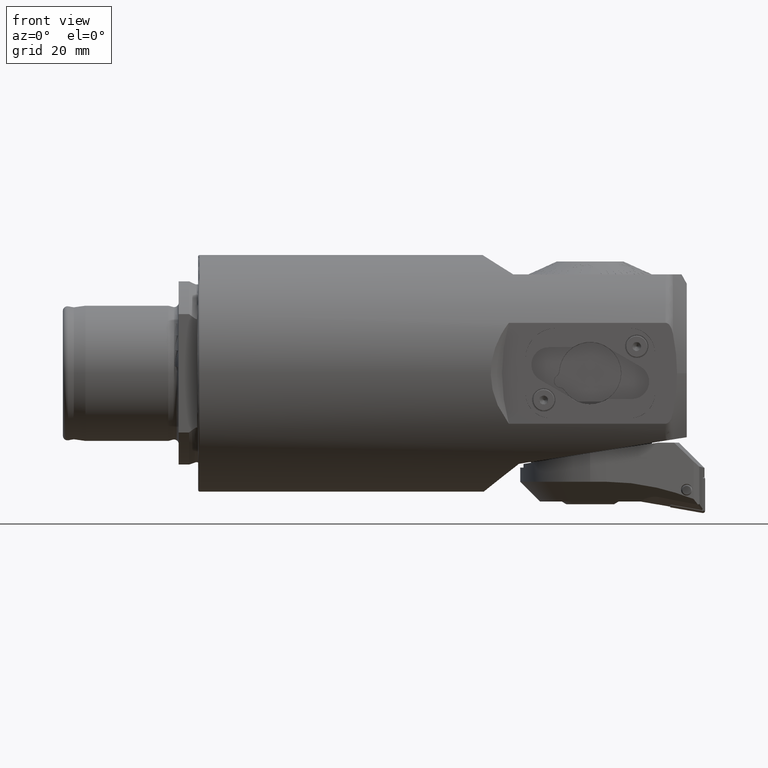
[diagram: clean part render]
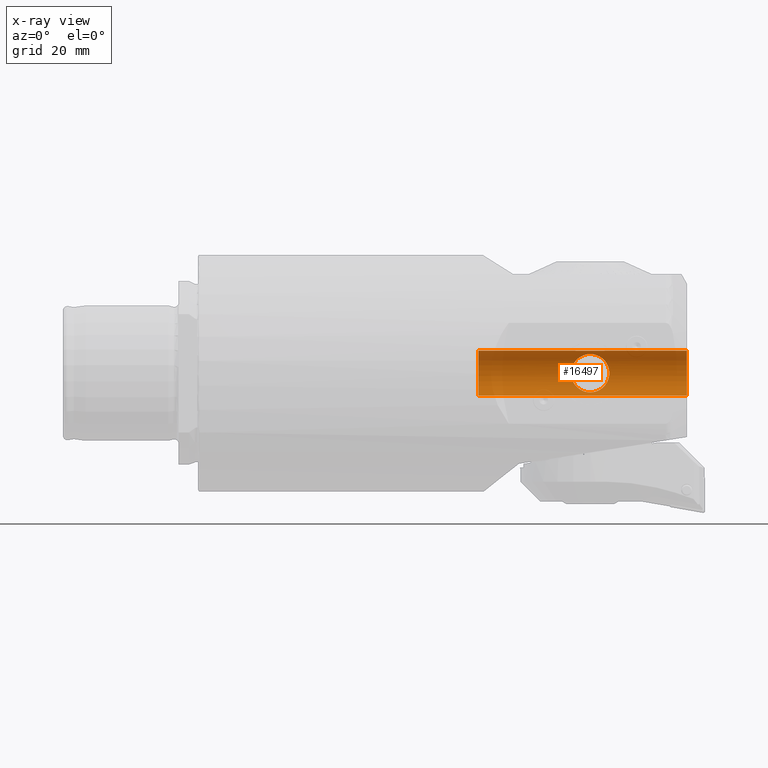
[diagram: x-ray — body ghosted, one internal face saturated and labeled with its STEP entity id]
A machine part, front view, then the same camera in x-ray: the body is ghosted and one INTERNAL B-rep face — a face not visible from any outside direction — is saturated and labeled: STEP entity #16497.
In plain terms, the highlighted cylindrical surface (edge-blend (fillet) strip) has radius 4 mm, axis along (1, 0, 0).
Its self-contained STEP definition (entity closure, byte-faithful):
#59 = CARTESIAN_POINT ( 'NONE',  ( 66.20029320698316200, 14.49975077411593800, 0.2415917161080868800 ) ) ;
#238 = DIRECTION ( 'NONE',  ( 0.0000000000000000000, 0.0000000000000000000, -1.000000000000000000 ) ) ;
#930 = CARTESIAN_POINT ( 'NONE',  ( 49.74999999999999300, 10.50000000000000900, 3.999999999999991600 ) ) ;
#1514 = CARTESIAN_POINT ( 'NONE',  ( 66.22624692366817100, 14.47762679373887300, 0.4827091111220064300 ) ) ;
#1586 = CARTESIAN_POINT ( 'NONE',  ( 86.75000000000000000, 10.50000000000000900, 3.999999999999993300 ) ) ;
#2024 = CARTESIAN_POINT ( 'NONE',  ( 72.87871926215100900, 10.50000000000000700, -3.999999999999993300 ) ) ;
#2058 = B_SPLINE_CURVE_WITH_KNOTS ( 'NONE', 3,
 ( #4241, #23598, #7076, #26384, #9847, #29150, #13129, #32398, #15927, #35176, #18661, #2024 ),
 .UNSPECIFIED., .F., .F.,
 ( 4, 2, 2, 2, 2, 4 ),
 ( 0.0000000000000000000, 0.001657707222702351400, 0.003315414445404702700, 0.004144268056755899000, 0.004973121668107095300, 0.006630828890809487900 ),
 .UNSPECIFIED. ) ;
#2365 = CARTESIAN_POINT ( 'NONE',  ( 66.32473003301213100, 14.39444456204779700, 0.9422444212442422400 ) ) ;
#2575 = CARTESIAN_POINT ( 'NONE',  ( 71.12984336122038100, 13.09856422677248300, -3.043959851297211500 ) ) ;
#2654 = CARTESIAN_POINT ( 'NONE',  ( 72.35113933623448200, 10.66474156813589100, 3.999999999999993300 ) ) ;
#2697 = CARTESIAN_POINT ( 'NONE',  ( 72.97523637235555300, 14.47888773231495600, 0.4721518094093917200 ) ) ;
#2826 = CARTESIAN_POINT ( 'NONE',  ( 70.52755143176034400, 12.80031713631205100, 3.272888174631786800 ) ) ;
#3082 = CARTESIAN_POINT ( 'NONE',  ( 86.75000000000000000, 10.50000000000000900, 0.0000000000000000000 ) ) ;
#3103 = CYLINDRICAL_SURFACE ( 'NONE', #28645, 3.999999999999993300 ) ;
#3541 = EDGE_CURVE ( 'NONE', #34773, #25202, #5668, .T. ) ;
#3993 = FACE_BOUND ( 'NONE', #21827, .T. ) ;
#4241 = CARTESIAN_POINT ( 'NONE',  ( 66.32128073784899400, 10.50000000000000900, -3.999999999999993300 ) ) ;
#4433 = EDGE_CURVE ( 'NONE', #34541, #33402, #16050, .T. ) ;
#4540 = CARTESIAN_POINT ( 'NONE',  ( 69.59999999999999400, 12.60713075057061300, 3.399999999999958600 ) ) ;
#4752 = CARTESIAN_POINT ( 'NONE',  ( 66.39647878788594000, 14.33404250513923600, 1.161732173937885200 ) ) ;
#4952 = LINE ( 'NONE', #8764, #12366 ) ;
#5070 = ORIENTED_EDGE ( 'NONE', *, *, #4433, .T. ) ;
#5118 = CARTESIAN_POINT ( 'NONE',  ( 66.58064933254461000, 14.18155024790009300, 1.579775726919371100 ) ) ;
#5404 = CARTESIAN_POINT ( 'NONE',  ( 71.65862260671437400, 13.44301479209332200, -2.713895236536594300 ) ) ;
#5487 = CARTESIAN_POINT ( 'NONE',  ( 70.15168814137926700, 11.00003609520684300, 3.968622419028486900 ) ) ;
#5534 = CARTESIAN_POINT ( 'NONE',  ( 72.80568821200788000, 14.33586151943765500, 1.155473790320346000 ) ) ;
#5663 = CARTESIAN_POINT ( 'NONE',  ( 70.19285967703410700, 12.68635278496534000, 3.349880452182826000 ) ) ;
#5668 = CIRCLE ( 'NONE', #21228, 3.999999999999991600 ) ;
#5963 = DIRECTION ( 'NONE',  ( 1.000000000000000000, -0.0000000000000000000, -0.0000000000000000000 ) ) ;
#6227 = CARTESIAN_POINT ( 'NONE',  ( 66.68979337396956500, 14.09217344605888700, 1.771297428691596300 ) ) ;
#6242 = EDGE_CURVE ( 'NONE', #19397, #31497, #16536, .T. ) ;
#6339 = B_SPLINE_CURVE_WITH_KNOTS ( 'NONE', 3,
 ( #10955, #2654, #19283, #22075, #5487, #24836, #8308, #27597, #11078, #30379, #13880, #33138 ),
 .UNSPECIFIED., .F., .F.,
 ( 4, 2, 2, 2, 2, 4 ),
 ( 0.02447144514583597000, 0.02612663286828468400, 0.02778182059073339800, 0.02943700831318210900, 0.03026460217440646700, 0.03109219603563082400 ),
 .UNSPECIFIED. ) ;
#6746 = DIRECTION ( 'NONE',  ( 1.000000000000000000, -0.0000000000000000000, -0.0000000000000000000 ) ) ;
#6780 = CARTESIAN_POINT ( 'NONE',  ( 66.93775102528978500, 13.89440378619346800, 2.125847497760713400 ) ) ;
#7076 = CARTESIAN_POINT ( 'NONE',  ( 67.39701250567496500, 10.79130259362015700, -3.990254456750717400 ) ) ;
#8228 = CARTESIAN_POINT ( 'NONE',  ( 72.12354290629978900, 13.78607313972996300, -2.288213798960637000 ) ) ;
#8262 = EDGE_CURVE ( 'NONE', #21472, #8650, #6339, .T. ) ;
#8308 = CARTESIAN_POINT ( 'NONE',  ( 68.49478087657863100, 10.95855876032172900, 3.974525765906333800 ) ) ;
#8356 = CARTESIAN_POINT ( 'NONE',  ( 72.51406656894499700, 14.09528765997715800, 1.765242873718624800 ) ) ;
#8377 = ORIENTED_EDGE ( 'NONE', *, *, #22329, .T. ) ;
#8469 = CARTESIAN_POINT ( 'NONE',  ( 69.84286495112384300, 12.61790866776065700, 3.393377938794344600 ) ) ;
#8546 = CARTESIAN_POINT ( 'NONE',  ( 66.68657396856205800, 14.09477374599102900, -1.766204473687402100 ) ) ;
#8548 = CARTESIAN_POINT ( 'NONE',  ( 67.07806350609612900, 13.78484104320134100, 2.289957187037936500 ) ) ;
#8579 = CARTESIAN_POINT ( 'NONE',  ( 66.32128073784899400, 10.50000000000000900, -3.999999999999993300 ) ) ;
#8650 = VERTEX_POINT ( 'NONE', #13235 ) ;
#8764 = CARTESIAN_POINT ( 'NONE',  ( 86.75000000000000000, 10.50000000000000900, 3.999999999999993300 ) ) ;
#9607 = CARTESIAN_POINT ( 'NONE',  ( 67.37891737904847400, 13.55993872633240800, 2.582800725696426700 ) ) ;
#9766 = CARTESIAN_POINT ( 'NONE',  ( 67.53981241314910700, 13.44411830611975500, 2.712696273565397200 ) ) ;
#9847 = CARTESIAN_POINT ( 'NONE',  ( 69.04147166469694200, 10.99995426820468900, -3.968632728261085600 ) ) ;
#9943 = VECTOR ( 'NONE', #23790, 1000.000000000000000 ) ;
#10231 = CARTESIAN_POINT ( 'NONE',  ( 67.88513873861431600, 13.21370758432377100, 2.943186168054731800 ) ) ;
#10345 = CARTESIAN_POINT ( 'NONE',  ( 68.07135417352951400, 13.09788121237022600, 3.044526586927038800 ) ) ;
#10469 = CARTESIAN_POINT ( 'NONE',  ( 68.46561595135646900, 12.88726954921672200, 3.212331401252737500 ) ) ;
#10955 = CARTESIAN_POINT ( 'NONE',  ( 72.87871926215100900, 10.50000000000000700, 3.999999999999993300 ) ) ;
#10991 = CARTESIAN_POINT ( 'NONE',  ( 72.50791884919797800, 14.09032423891298300, -1.774935028109661600 ) ) ;
#11078 = CARTESIAN_POINT ( 'NONE',  ( 67.39222883505843200, 10.77973778877368900, 3.990697473642072200 ) ) ;
#11117 = CARTESIAN_POINT ( 'NONE',  ( 72.12595358946127500, 13.78794216507006000, 2.285480378414796600 ) ) ;
#11235 = CARTESIAN_POINT ( 'NONE',  ( 69.59999999999999400, 12.60713075057061300, 3.399999999999958600 ) ) ;
#11509 = CARTESIAN_POINT ( 'NONE',  ( 68.67322158733486500, 12.79197613451799700, 3.279355701261409600 ) ) ;
#11999 = ORIENTED_EDGE ( 'NONE', *, *, #30048, .F. ) ;
#12366 = VECTOR ( 'NONE', #5963, 1000.000000000000000 ) ;
#12371 = VERTEX_POINT ( 'NONE', #8579 ) ;
#12516 = CARTESIAN_POINT ( 'NONE',  ( 69.59999999999999400, 12.60713075057061300, 3.399999999999958600 ) ) ;
#12960 = CARTESIAN_POINT ( 'NONE',  ( 72.87871926215100900, 10.50000000000000700, 3.999999999999993300 ) ) ;
#13129 = CARTESIAN_POINT ( 'NONE',  ( 70.15882136216619400, 10.98932519488530000, -3.970014551052450300 ) ) ;
#13235 = CARTESIAN_POINT ( 'NONE',  ( 66.32128073784898000, 10.50000000000000900, 3.999999999999993300 ) ) ;
#13483 = EDGE_CURVE ( 'NONE', #25202, #8650, #4952, .T. ) ;
#13684 = CARTESIAN_POINT ( 'NONE',  ( 69.83753203055830700, 12.61729810752954400, -3.393756686616953700 ) ) ;
#13804 = CARTESIAN_POINT ( 'NONE',  ( 72.80218408636287100, 14.33292950760090900, -1.165081166524288400 ) ) ;
#13875 = CARTESIAN_POINT ( 'NONE',  ( 69.35776920957215500, 12.60713075057061200, 3.399999999999958600 ) ) ;
#13880 = CARTESIAN_POINT ( 'NONE',  ( 66.58466114248869900, 10.58224289580623000, 3.999999999999994200 ) ) ;
#13927 = CARTESIAN_POINT ( 'NONE',  ( 71.66355730805929600, 13.44643000430937700, 2.710281857267437600 ) ) ;
#14716 = CARTESIAN_POINT ( 'NONE',  ( 69.12414565327114200, 12.64957524509348700, 3.374411753517502000 ) ) ;
#15902 = ORIENTED_EDGE ( 'NONE', *, *, #13483, .F. ) ;
#15927 = CARTESIAN_POINT ( 'NONE',  ( 70.98969399700710900, 10.91536844203161200, -3.978596939462574400 ) ) ;
#16050 = LINE ( 'NONE', #17819, #29825 ) ;
#16100 = ORIENTED_EDGE ( 'NONE', *, *, #8262, .T. ) ;
#16464 = CARTESIAN_POINT ( 'NONE',  ( 70.18934418016489500, 12.68543443096321400, -3.350472811635128300 ) ) ;
#16497 = ADVANCED_FACE ( 'NONE', ( #32531, #3993 ), #3103, .F. ) ;
#16536 = B_SPLINE_CURVE_WITH_KNOTS ( 'NONE', 3,
 ( #12516, #13875, #14716, #11509, #10469, #10345, #10231, #9766, #9607, #8548, #6780, #6227, #5118, #4752, #2365, #1514, #59, #35911, #33615, #25434, #33493, #33131, #8546, #30008, #27002, #27369, #26882, #30253, #24245, #22417, #16773, #22292, #21583, #19515, #18679, #18548 ),
 .UNSPECIFIED., .F., .F.,
 ( 4, 2, 2, 2, 2, 2, 2, 2, 2, 2, 2, 2, 2, 2, 2, 2, 2, 4 ),
 ( 0.0000000000000000000, 0.0007142381427011211700, 0.001428476285402242300, 0.002142714428103363500, 0.002856952570804484700, 0.003571190713505605900, 0.004285428856206727000, 0.004999666998907847800, 0.005713905141608969400, 0.006428143284310091000, 0.007142381427011211700, 0.007856619569712333300, 0.008570857712413454100, 0.009285095855114574800, 0.009999333997815695500, 0.01071357214051681800, 0.01107069121186735900, 0.01142781028321790100 ),
 .UNSPECIFIED. ) ;
#16583 = CARTESIAN_POINT ( 'NONE',  ( 72.97394441537836900, 14.47778688992436000, -0.4824786890230738900 ) ) ;
#16707 = CARTESIAN_POINT ( 'NONE',  ( 71.13195442266162200, 13.09992220490596700, 3.042757229320772100 ) ) ;
#16773 = CARTESIAN_POINT ( 'NONE',  ( 68.67422891085433900, 12.79172165699870700, -3.279518758484388100 ) ) ;
#16778 = EDGE_LOOP ( 'NONE', ( #15902, #23710, #17293, #8377, #5070, #31330, #34809, #16100 ) ) ;
#17265 = DIRECTION ( 'NONE',  ( 1.000000000000000000, -0.0000000000000000000, -0.0000000000000000000 ) ) ;
#17293 = ORIENTED_EDGE ( 'NONE', *, *, #28429, .T. ) ;
#17819 = CARTESIAN_POINT ( 'NONE',  ( 86.75000000000000000, 10.50000000000000900, -3.999999999999993300 ) ) ;
#18548 = CARTESIAN_POINT ( 'NONE',  ( 69.59999999999999400, 12.60713075057061000, -3.399999999999958600 ) ) ;
#18661 = CARTESIAN_POINT ( 'NONE',  ( 72.34854743184276100, 10.66555091355063600, -3.999999999999994700 ) ) ;
#18679 = CARTESIAN_POINT ( 'NONE',  ( 69.48086659089173600, 12.60713075057061200, -3.399999999999959100 ) ) ;
#19212 = CARTESIAN_POINT ( 'NONE',  ( 70.73471281981699100, 12.88740204285927300, -3.212248294064826000 ) ) ;
#19283 = CARTESIAN_POINT ( 'NONE',  ( 71.81050315009585500, 10.79011777869232300, 3.990363392223191600 ) ) ;
#19328 = CARTESIAN_POINT ( 'NONE',  ( 73.00054267314429500, 14.50046127182572400, 0.2301070915000027500 ) ) ;
#19352 = LINE ( 'NONE', #33189, #32274 ) ;
#19364 = EDGE_CURVE ( 'NONE', #21472, #23434, #24629, .T. ) ;
#19397 = VERTEX_POINT ( 'NONE', #4540 ) ;
#19448 = CARTESIAN_POINT ( 'NONE',  ( 70.73758167194849000, 12.89273887614243100, 3.205940829437144800 ) ) ;
#19515 = CARTESIAN_POINT ( 'NONE',  ( 69.35965533604260700, 12.61761860720937300, -3.393557887979912200 ) ) ;
#19776 = ORIENTED_EDGE ( 'NONE', *, *, #6242, .F. ) ;
#21228 = AXIS2_PLACEMENT_3D ( 'NONE', #34251, #34240, #34223 ) ;
#21472 = VERTEX_POINT ( 'NONE', #12960 ) ;
#21583 = CARTESIAN_POINT ( 'NONE',  ( 69.12432184475959200, 12.65703794947596900, -3.368639337950941400 ) ) ;
#21827 = EDGE_LOOP ( 'NONE', ( #19776, #11999 ) ) ;
#21994 = CARTESIAN_POINT ( 'NONE',  ( 71.31291100073518400, 13.21246624422207100, -2.944331892863293100 ) ) ;
#22075 = CARTESIAN_POINT ( 'NONE',  ( 70.70441032831985200, 10.95870629597016500, 3.974513411921723800 ) ) ;
#22115 = CARTESIAN_POINT ( 'NONE',  ( 72.87827280907288200, 14.39697313665376500, 0.9317055810147082400 ) ) ;
#22232 = CARTESIAN_POINT ( 'NONE',  ( 70.41748925832517600, 12.75764137788750200, 3.302255737082227900 ) ) ;
#22292 = CARTESIAN_POINT ( 'NONE',  ( 69.00986017436292700, 12.68563469608209400, -3.350344584573962800 ) ) ;
#22329 = EDGE_CURVE ( 'NONE', #12371, #34541, #2058, .T. ) ;
#22417 = CARTESIAN_POINT ( 'NONE',  ( 68.46266882646649800, 12.88871263479431100, -3.211250099679539900 ) ) ;
#22425 = CARTESIAN_POINT ( 'NONE',  ( 70.83853392095971900, 12.94277384401027200, 3.168177347317535200 ) ) ;
#23278 = CARTESIAN_POINT ( 'NONE',  ( 86.75000000000000000, 10.50000000000000900, 0.0000000000000000000 ) ) ;
#23434 = VERTEX_POINT ( 'NONE', #28005 ) ;
#23598 = CARTESIAN_POINT ( 'NONE',  ( 66.85628790657472100, 10.66706079137999900, -3.999999999999992500 ) ) ;
#23710 = ORIENTED_EDGE ( 'NONE', *, *, #3541, .F. ) ;
#23790 = DIRECTION ( 'NONE',  ( 1.000000000000000000, -0.0000000000000000000, -0.0000000000000000000 ) ) ;
#24245 = CARTESIAN_POINT ( 'NONE',  ( 68.06961122520203800, 13.09894510433800400, -3.043609633142092100 ) ) ;
#24629 = LINE ( 'NONE', #1586, #9943 ) ;
#24771 = CARTESIAN_POINT ( 'NONE',  ( 71.82244629742203300, 13.56092721648912100, -2.581651340666422500 ) ) ;
#24836 = CARTESIAN_POINT ( 'NONE',  ( 69.04687340598313500, 10.99996385776713500, 3.968631520089996600 ) ) ;
#24880 = CARTESIAN_POINT ( 'NONE',  ( 72.62357520047397900, 14.18502424369466300, 1.571480066625851900 ) ) ;
#25001 = CARTESIAN_POINT ( 'NONE',  ( 70.07815076089403300, 12.65758705285206400, 3.368288745021283900 ) ) ;
#25202 = VERTEX_POINT ( 'NONE', #930 ) ;
#25260 = DIRECTION ( 'NONE',  ( 1.000000000000000000, -0.0000000000000000000, -0.0000000000000000000 ) ) ;
#25434 = CARTESIAN_POINT ( 'NONE',  ( 66.32256673655108200, 14.39626584507695000, -0.9347910684628936200 ) ) ;
#26054 = CARTESIAN_POINT ( 'NONE',  ( 72.87871926215100900, 10.50000000000000700, -3.999999999999993300 ) ) ;
#26070 = DIRECTION ( 'NONE',  ( 0.0000000000000000000, 0.0000000000000000000, -1.000000000000000000 ) ) ;
#26199 = EDGE_CURVE ( 'NONE', #33402, #23434, #34640, .T. ) ;
#26384 = CARTESIAN_POINT ( 'NONE',  ( 68.48960391828185800, 10.95775461072799400, -3.974600426083867000 ) ) ;
#26711 = CARTESIAN_POINT ( 'NONE',  ( 69.59999999999999400, 12.60713075057061000, -3.399999999999958600 ) ) ;
#26882 = CARTESIAN_POINT ( 'NONE',  ( 67.53616643983920700, 13.44663371849753700, -2.710046779139327500 ) ) ;
#27002 = CARTESIAN_POINT ( 'NONE',  ( 67.07557616472973900, 13.78676623763686500, -2.287156795793716200 ) ) ;
#27369 = CARTESIAN_POINT ( 'NONE',  ( 67.37514625468156700, 13.56269338799140900, -2.579501448064846200 ) ) ;
#27416 = CARTESIAN_POINT ( 'NONE',  ( 69.59999999999999400, 12.60713075057061000, -3.399999999999958600 ) ) ;
#27528 = CARTESIAN_POINT ( 'NONE',  ( 72.26070523642991400, 13.89319738037309500, -2.127682784713431200 ) ) ;
#27597 = CARTESIAN_POINT ( 'NONE',  ( 67.66712508179372800, 10.83244544893346300, 3.986384680837222300 ) ) ;
#27643 = CARTESIAN_POINT ( 'NONE',  ( 72.26379002818796900, 13.89559813641347200, 2.124167850520233300 ) ) ;
#27767 = CARTESIAN_POINT ( 'NONE',  ( 69.72111856436124800, 12.60713075057061200, 3.399999999999958600 ) ) ;
#27776 = DIRECTION ( 'NONE',  ( 1.000000000000000000, -0.0000000000000000000, -0.0000000000000000000 ) ) ;
#28005 = CARTESIAN_POINT ( 'NONE',  ( 86.75000000000000000, 10.50000000000000900, 3.999999999999994700 ) ) ;
#28429 = EDGE_CURVE ( 'NONE', #34773, #12371, #19352, .T. ) ;
#28645 = AXIS2_PLACEMENT_3D ( 'NONE', #3082, #25260, #238 ) ;
#29150 = CARTESIAN_POINT ( 'NONE',  ( 69.87791207150802100, 11.00002281049876300, -3.968624092744383900 ) ) ;
#29761 = CARTESIAN_POINT ( 'NONE',  ( 49.74999999999999300, 10.50000000000000900, -3.999999999999991600 ) ) ;
#29825 = VECTOR ( 'NONE', #17265, 1000.000000000000000 ) ;
#30008 = CARTESIAN_POINT ( 'NONE',  ( 66.93600859905609500, 13.89576165661099900, -2.123835986895019200 ) ) ;
#30048 = EDGE_CURVE ( 'NONE', #31497, #19397, #30709, .T. ) ;
#30253 = CARTESIAN_POINT ( 'NONE',  ( 67.88396288604744200, 13.21441055910913100, -2.942614336386419400 ) ) ;
#30301 = CARTESIAN_POINT ( 'NONE',  ( 72.61915005731042100, 14.18139005755155900, -1.579914548001854600 ) ) ;
#30379 = CARTESIAN_POINT ( 'NONE',  ( 66.85151702949480100, 10.65470983519991700, 3.997497269979509900 ) ) ;
#30423 = CARTESIAN_POINT ( 'NONE',  ( 71.82636039118764900, 13.56378895098579700, 2.578212850945776700 ) ) ;
#30709 = B_SPLINE_CURVE_WITH_KNOTS ( 'NONE', 3,
 ( #27416, #35603, #13684, #32953, #16464, #35717, #19212, #2575, #21994, #5404, #24771, #8228, #27528, #10991, #30301, #13804, #33065, #16583, #35841, #19328, #2697, #22115, #5534, #24880, #8356, #27643, #11117, #30423, #13927, #33178, #16707, #22425, #19448, #2826, #22232, #5663, #25001, #8469, #27767, #11235 ),
 .UNSPECIFIED., .F., .F.,
 ( 4, 2, 2, 2, 2, 2, 2, 2, 2, 2, 2, 2, 2, 2, 2, 2, 2, 2, 2, 4 ),
 ( 0.01142781028321790100, 0.01178493869906957700, 0.01214206711492125300, 0.01285632394662460600, 0.01357058077832795800, 0.01428483761003131200, 0.01499909444173466400, 0.01571335127343801600, 0.01642760810514137100, 0.01714186493684472300, 0.01785612176854807500, 0.01857037860025143000, 0.01928463543195478200, 0.01999889226365813400, 0.02071314909536149000, 0.02142740592706484500, 0.02178453434291650500, 0.02214166275876816600, 0.02249879117461983000, 0.02285591959047148700 ),
 .UNSPECIFIED. ) ;
#31330 = ORIENTED_EDGE ( 'NONE', *, *, #26199, .T. ) ;
#31497 = VERTEX_POINT ( 'NONE', #26711 ) ;
#31565 = AXIS2_PLACEMENT_3D ( 'NONE', #23278, #6746, #26070 ) ;
#32274 = VECTOR ( 'NONE', #27776, 1000.000000000000000 ) ;
#32398 = CARTESIAN_POINT ( 'NONE',  ( 70.71416305851715800, 10.94697173801000500, -3.975005779535173600 ) ) ;
#32531 = FACE_OUTER_BOUND ( 'NONE', #16778, .T. ) ;
#32953 = CARTESIAN_POINT ( 'NONE',  ( 70.07292977824518200, 12.65643047320289900, -3.369027061088614600 ) ) ;
#33065 = CARTESIAN_POINT ( 'NONE',  ( 72.87424026553198100, 14.39357636884425600, -0.9463811531265095000 ) ) ;
#33117 = CARTESIAN_POINT ( 'NONE',  ( 86.75000000000000000, 10.50000000000000900, -3.999999999999994700 ) ) ;
#33131 = CARTESIAN_POINT ( 'NONE',  ( 66.57749842568812000, 14.18413946672913500, -1.573689015940482400 ) ) ;
#33138 = CARTESIAN_POINT ( 'NONE',  ( 66.32128073784898000, 10.50000000000000900, 3.999999999999993300 ) ) ;
#33178 = CARTESIAN_POINT ( 'NONE',  ( 71.31518219347847800, 13.21385905372316600, 2.943135496821779600 ) ) ;
#33189 = CARTESIAN_POINT ( 'NONE',  ( 86.75000000000000000, 10.50000000000000900, -3.999999999999993300 ) ) ;
#33402 = VERTEX_POINT ( 'NONE', #33117 ) ;
#33493 = CARTESIAN_POINT ( 'NONE',  ( 66.39440293768994600, 14.33578158521626400, -1.155924028523824600 ) ) ;
#33615 = CARTESIAN_POINT ( 'NONE',  ( 66.22502012095350200, 14.47866911455579400, -0.4742509399790383300 ) ) ;
#34223 = DIRECTION ( 'NONE',  ( 0.0000000000000000000, 0.0000000000000000000, -1.000000000000000000 ) ) ;
#34240 = DIRECTION ( 'NONE',  ( 1.000000000000000000, -0.0000000000000000000, -0.0000000000000000000 ) ) ;
#34251 = CARTESIAN_POINT ( 'NONE',  ( 49.74999999999999300, 10.50000000000000900, 0.0000000000000000000 ) ) ;
#34541 = VERTEX_POINT ( 'NONE', #26054 ) ;
#34640 = CIRCLE ( 'NONE', #31565, 3.999999999999994700 ) ;
#34773 = VERTEX_POINT ( 'NONE', #29761 ) ;
#34809 = ORIENTED_EDGE ( 'NONE', *, *, #19364, .F. ) ;
#35176 = CARTESIAN_POINT ( 'NONE',  ( 71.81000871067145400, 10.78989953712380300, -3.990365453905500900 ) ) ;
#35603 = CARTESIAN_POINT ( 'NONE',  ( 69.71913652639420900, 12.60713075057061500, -3.399999999999959100 ) ) ;
#35717 = CARTESIAN_POINT ( 'NONE',  ( 70.52398087267766900, 12.79105412647855800, -3.279975280963029100 ) ) ;
#35841 = CARTESIAN_POINT ( 'NONE',  ( 72.99943904833136800, 14.49952319143447400, -0.2458737523891294200 ) ) ;
#35911 = CARTESIAN_POINT ( 'NONE',  ( 66.19971188840897000, 14.50024489480126800, -0.2332672157622984200 ) ) ;